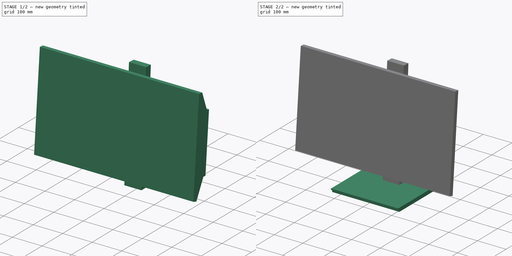
[diagram: build sequence overview — one tinted view per stage of 2, left to right]
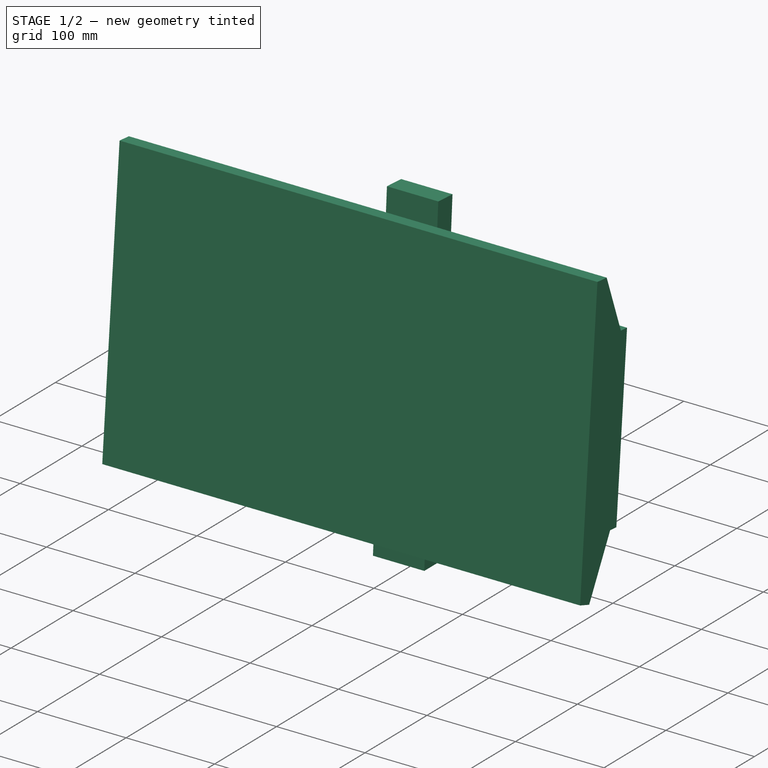
[diagram: stage 1 of 2 — iso view after this stage's code; geometry added in this stage tinted green]
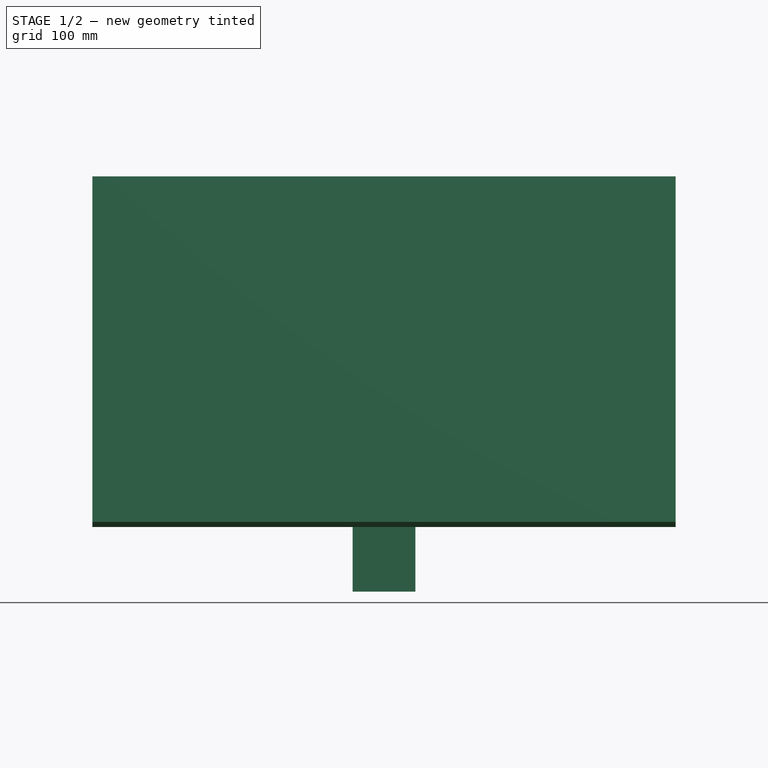
[diagram: stage 1 of 2 — front view after this stage's code; geometry added in this stage tinted green]
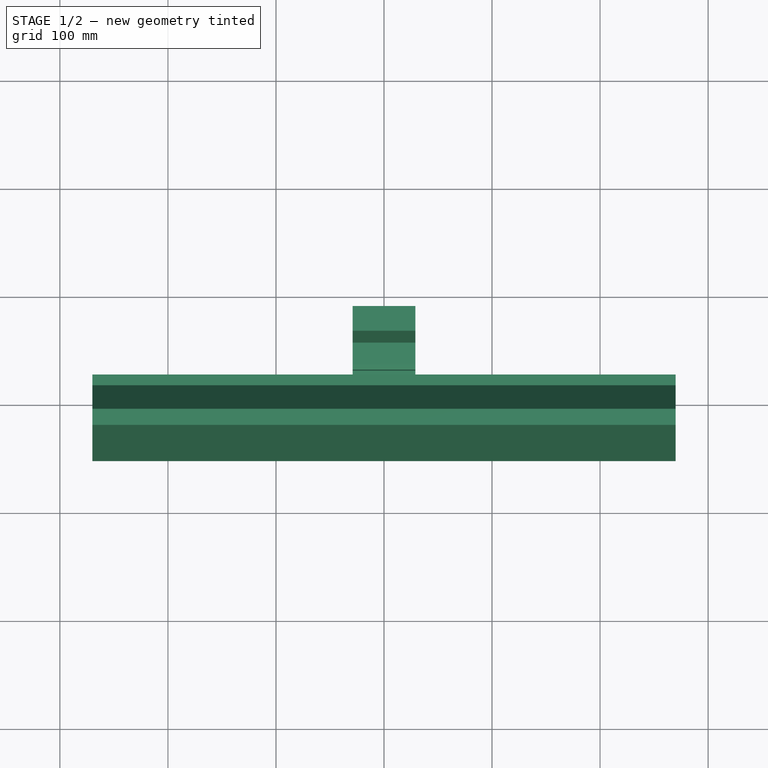
[diagram: stage 1 of 2 — top view after this stage's code; geometry added in this stage tinted green]
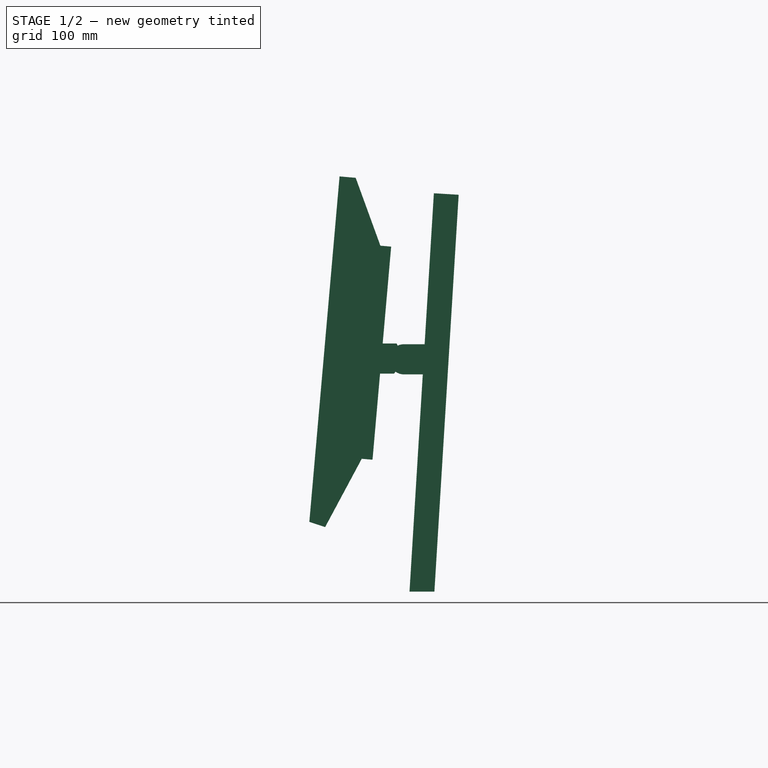
[diagram: stage 1 of 2 — right view after this stage's code; geometry added in this stage tinted green]
FCSTD DOCUMENT  (FreeCAD 0.20R29177 +426 (Git))
Label: monitor_bar_light_3d_model
License: All rights reserved
LicenseURL: http://en.wikipedia.org/wiki/All_rights_reserved
objects: Sketcher::SketchObject×5, PartDesign::Pad×3, Image::ImagePlane×2, Spreadsheet::Sheet×1, PartDesign::Plane×1, PartDesign::Pocket×1, PartDesign::Body×1
note: 15 computed .brp shape members not serialized (recipe doc carries the construction recipe); baked Part::Feature solids carry a one-line shape summary decoded from their .brp

FEATURE [Image::ImagePlane] ImagePlane  label="Monitor Tilt Ref"
  Placement = pos=(0,0,0) rot=(0.57735,0.57735,0.57735;2.0944rad)
  XSize = 264.049
  YSize = 612.33
FEATURE [Sketcher::SketchObject] Sketch  label="Monitor Side Sketch"
  FullyConstrained = true
  Placement = pos=(0,0,0) rot=(0.57735,0.57735,0.57735;2.0944rad)
  expr: Constraints[68] = <<Params>>.MonitorHeighAdjust
  expr: Constraints[86] = <<Params>>.MonitorTiltAngle
  sketch-geometry (33):
    g0: LineSegment StartX=39.8926 StartY=-261.309 StartZ=0 EndX=62.4444 EndY=107.408 EndZ=0
    g1: LineSegment StartX=85.4015 StartY=106.004 StartZ=0 EndX=62.9356 EndY=-261.309 EndZ=0
    g2: LineSegment StartX=101.893 StartY=-261.309 StartZ=0 EndX=-92.1074 EndY=-261.309 EndZ=0
    g3: LineSegment StartX=101.893 StartY=-261.309 StartZ=0 EndX=101.893 EndY=-265.309 EndZ=0
    g4: LineSegment StartX=101.893 StartY=-265.309 StartZ=0 EndX=95.8926 EndY=-265.309 EndZ=0
    g5: LineSegment StartX=95.8926 StartY=-265.309 StartZ=0 EndX=95.8926 EndY=-274.309 EndZ=0
    g6: LineSegment StartX=95.8926 StartY=-274.309 StartZ=0 EndX=-86.1074 EndY=-274.309 EndZ=0
    g7: LineSegment StartX=-86.1074 StartY=-274.309 StartZ=0 EndX=-86.1074 EndY=-265.309 EndZ=0
    g8: LineSegment StartX=-86.1074 StartY=-265.309 StartZ=0 EndX=-92.1074 EndY=-265.309 EndZ=0
    g9: LineSegment StartX=-92.1074 StartY=-261.309 StartZ=0 EndX=-92.1074 EndY=-265.309 EndZ=0
    g10: Circle CenterX=34.8976 CenterY=-46.3045 CenterZ=0 NormalX=0 NormalY=0 NormalZ=1 AngleXU=0 Radius=13.9739
    g11: LineSegment StartX=34.8976 StartY=-32.3306 StartZ=0 EndX=53.8976 EndY=-32.3306 EndZ=0
    g12: LineSegment StartX=34.8976 StartY=-60.2783 StartZ=0 EndX=52.1882 EndY=-60.2783 EndZ=0
    g13: LineSegment StartX=-24.8576 StartY=122.997 StartZ=0 EndX=-9.91473 EndY=121.69 EndZ=0
    g14: LineSegment StartX=-9.91473 StartY=121.69 StartZ=0 EndX=12.9477 EndY=58.8758 EndZ=0
    g15: LineSegment StartX=12.9477 StartY=58.8758 StartZ=0 EndX=22.9096 EndY=58.0043 EndZ=0
    g16: LineSegment StartX=-24.8576 StartY=122.997 StartZ=0 EndX=-52.8331 EndY=-196.764 EndZ=0
    g17: LineSegment StartX=-52.8331 StartY=-196.764 StartZ=0 EndX=-38.1968 EndY=-201.575 EndZ=0
    g18: LineSegment StartX=-38.1968 StartY=-201.575 StartZ=0 EndX=-4.30916 EndY=-138.371 EndZ=0
    g19: LineSegment StartX=-4.30916 StartY=-138.371 StartZ=0 EndX=5.65279 EndY=-139.242 EndZ=0
    g20: LineSegment StartX=5.65279 StartY=-139.242 StartZ=0 EndX=22.9096 EndY=58.0043 EndZ=0
    g21: LineSegment StartX=-9.91473 StartY=121.69 StartZ=0 EndX=-38.1968 EndY=-201.575 EndZ=0
    g22: LineSegment StartX=-4.30916 StartY=-138.371 StartZ=0 EndX=12.9477 EndY=58.8758 EndZ=0
    g23: LineSegment StartX=28.0656 StartY=-31.6533 StartZ=0 EndX=34.8976 EndY=-46.3045 EndZ=0
    g24: LineSegment StartX=34.8976 StartY=-46.3045 StartZ=0 EndX=25.6252 EndY=-59.5467 EndZ=0
    g25: LineSegment StartX=25.6252 StartY=-59.5467 StartZ=0 EndX=12.6252 EndY=-59.5467 EndZ=0
    g26: LineSegment StartX=28.0656 StartY=-31.6533 StartZ=0 EndX=15.0656 EndY=-31.6533 EndZ=0
    g27: LineSegment StartX=62.4444 StartY=107.408 StartZ=0 EndX=85.4015 EndY=106.004 EndZ=0
    g28: GeomPoint X=28.992 Y=-33.6398 Z=0
    g29: GeomPoint X=26.8825 Y=-57.7512 Z=0
    g30: LineSegment StartX=34.8976 StartY=-32.3306 StartZ=0 EndX=34.8976 EndY=-60.2783 EndZ=0
    g31: LineSegment StartX=28.0656 StartY=-31.6533 StartZ=0 EndX=28.992 EndY=-33.6398 EndZ=0
    g32: LineSegment StartX=26.8825 StartY=-57.7512 StartZ=0 EndX=25.6252 EndY=-59.5467 EndZ=0
  constraints (95):
    c: Horizontal(g2)
    c: PointOnObject(g0,g2)
    c: PointOnObject(g1,g2)
    c: Coincident(g3,g2)
    c: Vertical(g3)
    c: Coincident(g4,g3)
    c: Horizontal(g4)
    c: Coincident(g5,g4)
    c: Vertical(g5)
    c: Coincident(g6,g5)
    c: Horizontal(g6)
    c: Coincident(g7,g6)
    c: Vertical(g7)
    c: Coincident(g8,g7)
    c: Horizontal(g8)
    c: Coincident(g9,g2)
    c: Vertical(g9)
    c: Coincident(g8,g9)
    c: PointOnObject(g11,g10)
    c: PointOnObject(g11,g0)
    c: Horizontal(g11)
    c: PointOnObject(g12,g10)
    c: PointOnObject(g12,g0)
    c: Horizontal(g12)
    c: Coincident(g14,g13)
    c: Coincident(g15,g14)
    c: Coincident(g16,g13)
    c: Coincident(g17,g16)
    c: Coincident(g18,g17)
    c: Coincident(g20,g15)
    c: Coincident(g21,g13)
    c: Coincident(g21,g17)
    c: Coincident(g22,g18)
    c: Coincident(g22,g14)
    c: Coincident(g23,g10)
    c: Coincident(g24,g10)
    c: Coincident(g25,g24)
    c: PointOnObject(g25,g20)
    c: Horizontal(g25)
    c: Coincident(g26,g23)
    c: PointOnObject(g26,g20)
    c: Horizontal(g26)
    c: Angle(g23,g24) = 2.0944
    c: Angle(g0,g2) = 1.63188
    c: Coincident(g27,g0)
    c: Coincident(g27,g1)
    c: Parallel(g0,g1)
    c: Perpendicular(g0,g27)
    c: Distance(g27) = 23
    c: Distance(g11,g12) = 28
    c: PointOnObject(g28,g10)
    c: PointOnObject(g29,g10)
    c: PointOnObject(g29,g24)
    c: PointOnObject(g28,g23)
    c: Distance(g26,g25) = 28
    c: Distance(g8) = 6
    c: Distance(g4) = 6
    c: Distance(g2) = 194
    c: Parallel(g20,g22)
    c: Parallel(g22,g21)
    c: Parallel(g21,g16)
    c: Parallel(g19,g15)
    c: Parallel(g15,g13)
    c: Angle(g13,g14) = 2.00713
    c: Perpendicular(g16,g13)
    c: Coincident(g19,g18)
    c: Coincident(g19,g20)
    c: Angle(g18,g17) = 1.74533
    c: Distance(g11,g0) = 140
    c: Coincident(g30,g11)
    c: Coincident(g30,g12)
    c: Vertical(g30)
    c: PointOnObject(g10,g30)
    c: DistanceX(g6) = -86.1074
    c: DistanceY(g6) = -274.309
    c: Distance(g1) = 368
    c: Distance(g3) = 4
    c: Distance(g9) = 4
    c: Distance(g7) = 9
    c: Distance(g11) = 19
    c: Distance(g26) = 13
    c: Coincident(g31,g26)
    c: Coincident(g31,g28)
    c: Coincident(g32,g29)
    c: Coincident(g32,g25)
    c: Equal(g23,g24)
    c: Angle(g23,g30) = 2.70526
    c: Distance(g0,g2) = 132
    c: Equal(g25,g26)
    c: Distance(g15) = 10
    c: Distance(g15,g16) = 53.25
    c: Distance(g13) = 15
    c: Distance(g21) = 324.5
    c: Distance(g26,g15) = 90
    c: Distance(g19,g25) = 80
FEATURE [Image::ImagePlane] ImagePlane001  label="Monitor Hight Adj Ref"
  Placement = pos=(0,41,-19) rot=(0.57735,0.57735,0.57735;2.0944rad)
  XSize = 378.4
  YSize = 527.564
FEATURE [Spreadsheet::Sheet] Spreadsheet  label="Params"
  cells = A2=Parameter Name; B2=Min Value; C2=Max Value; D2=User Value; E2=Reference; F2=Resulting Sketch Angle; A3=Monitor Tilt; B3=-5; C3=20; D3=5; E3=150; F3(MonitorTiltAngle)==E3 + D3; A4=Monitor Height; B4=-120; C4=0; D4=-120; E4=20; F4(MonitorHeighAdjust)==E4 - D4
FEATURE [Sketcher::SketchObject] Sketch001  label="Monitor Body"
  ExternalGeometry = -> [Sketch]
  FullyConstrained = true
  MapMode = 5
  Placement = pos=(0,0,0) rot=(0.57735,0.57735,0.57735;2.0944rad)
  Support = -> [YZ_Plane]
  sketch-geometry (8):
    g0: LineSegment StartX=-24.8576 StartY=122.997 StartZ=0 EndX=-9.91473 EndY=121.69 EndZ=0
    g1: LineSegment StartX=-9.91473 StartY=121.69 StartZ=0 EndX=12.9477 EndY=58.8758 EndZ=0
    g2: LineSegment StartX=12.9477 StartY=58.8758 StartZ=0 EndX=22.9096 EndY=58.0043 EndZ=0
    g3: LineSegment StartX=22.9096 StartY=58.0043 StartZ=0 EndX=5.65279 EndY=-139.242 EndZ=0
    g4: LineSegment StartX=5.65279 StartY=-139.242 StartZ=0 EndX=-4.30916 EndY=-138.371 EndZ=0
    g5: LineSegment StartX=-4.30916 StartY=-138.371 StartZ=0 EndX=-38.1968 EndY=-201.575 EndZ=0
    g6: LineSegment StartX=-38.1968 StartY=-201.575 StartZ=0 EndX=-52.8331 EndY=-196.764 EndZ=0
    g7: LineSegment StartX=-52.8331 StartY=-196.764 StartZ=0 EndX=-24.8576 EndY=122.997 EndZ=0
  constraints (16):
    c: Coincident(g0,g-4)
    c: Coincident(g0,g-5)
    c: Coincident(g1,g0)
    c: Coincident(g1,g-6)
    c: Coincident(g2,g1)
    c: Coincident(g2,g-7)
    c: Coincident(g3,g2)
    c: Coincident(g3,g-8)
    c: Coincident(g4,g3)
    c: Coincident(g4,g-9)
    c: Coincident(g5,g4)
    c: Coincident(g5,g-10)
    c: Coincident(g6,g5)
    c: Coincident(g6,g-10)
    c: Coincident(g7,g6)
    c: Coincident(g7,g0)
FEATURE [PartDesign::Pad] Pad  label="Monitor"
  Direction = (1,-2e-16,3e-16)
  Length = 540
  Length2 = 10
  Midplane = true
  Placement = pos=(0,0,0) rot=(0.57735,0.57735,0.57735;2.0944rad)
  Profile = -> Sketch001
  ReferenceAxis = -> Sketch001 [N_Axis]
  Type = 0
FEATURE [Sketcher::SketchObject] Sketch002  label="Monitor Stand Bar"
  ExternalGeometry = -> [Sketch]
  FullyConstrained = true
  MapMode = 5
  Placement = pos=(0,0,0) rot=(0.57735,0.57735,0.57735;2.0944rad)
  Support = -> [YZ_Plane]
  sketch-geometry (14):
    g0: LineSegment StartX=62.4444 StartY=107.408 StartZ=0 EndX=85.4015 EndY=106.004 EndZ=0
    g1: LineSegment StartX=85.4015 StartY=106.004 StartZ=0 EndX=62.9356 EndY=-261.309 EndZ=0
    g2: LineSegment StartX=62.9356 StartY=-261.309 StartZ=0 EndX=39.8926 EndY=-261.309 EndZ=0
    g3: LineSegment StartX=39.8926 StartY=-261.309 StartZ=0 EndX=52.1882 EndY=-60.2783 EndZ=0
    g4: LineSegment StartX=34.8976 StartY=-60.2783 StartZ=0 EndX=52.1882 EndY=-60.2783 EndZ=0
    g5: LineSegment StartX=34.8976 StartY=-32.3306 StartZ=0 EndX=53.8976 EndY=-32.3306 EndZ=0
    g6: LineSegment StartX=53.8976 StartY=-32.3306 StartZ=0 EndX=62.4444 EndY=107.408 EndZ=0
    g7: ArcOfCircle CenterX=34.8976 CenterY=-46.3045 CenterZ=0 NormalX=0 NormalY=0 NormalZ=1 AngleXU=0 Radius=13.9739 StartAngle=1.5708 EndAngle=2.00713
    g8: ArcOfCircle CenterX=34.8976 CenterY=-46.3045 CenterZ=0 NormalX=0 NormalY=0 NormalZ=1 AngleXU=0 Radius=13.9739 StartAngle=4.10152 EndAngle=4.71239
    g9: LineSegment StartX=26.8825 StartY=-57.7512 StartZ=0 EndX=25.6252 EndY=-59.5467 EndZ=0
    g10: LineSegment StartX=25.6252 StartY=-59.5467 StartZ=0 EndX=12.6252 EndY=-59.5467 EndZ=0
    g11: LineSegment StartX=15.0656 StartY=-31.6533 StartZ=0 EndX=28.0656 EndY=-31.6533 EndZ=0
    g12: LineSegment StartX=28.0656 StartY=-31.6533 StartZ=0 EndX=28.992 EndY=-33.6398 EndZ=0
    g13: LineSegment StartX=15.0656 StartY=-31.6533 StartZ=0 EndX=12.6252 EndY=-59.5467 EndZ=0
  constraints (30):
    c: Coincident(g0,g-4)
    c: Coincident(g0,g-5)
    c: Coincident(g1,g0)
    c: Coincident(g1,g-5)
    c: Coincident(g2,g1)
    c: Coincident(g2,g-4)
    c: Coincident(g3,g2)
    c: Coincident(g3,g-7)
    c: Coincident(g4,g-7)
    c: Coincident(g4,g3)
    c: Coincident(g5,g-8)
    c: Coincident(g5,g-8)
    c: Coincident(g6,g5)
    c: Coincident(g6,g0)
    c: Coincident(g7,g-12)
    c: PointOnObject(g7,g-13)
    c: Coincident(g7,g5)
    c: Coincident(g8,g7)
    c: PointOnObject(g8,g-11)
    c: Coincident(g8,g4)
    c: Coincident(g9,g8)
    c: Coincident(g9,g-11)
    c: Coincident(g10,g9)
    c: Coincident(g10,g-10)
    c: Coincident(g11,g-9)
    c: Coincident(g11,g-13)
    c: Coincident(g12,g11)
    c: Coincident(g12,g7)
    c: Coincident(g13,g11)
    c: Coincident(g13,g10)
FEATURE [PartDesign::Pad] Pad001  label="Stand"
  BaseFeature = -> Pad
  Direction = (1,-2e-16,3e-16)
  Length = 58
  Length2 = 10
  Midplane = true
  Placement = pos=(0,0,0) rot=(0.57735,0.57735,0.57735;2.0944rad)
  Profile = -> Sketch002
  ReferenceAxis = -> Sketch002 [N_Axis]
  Type = 0
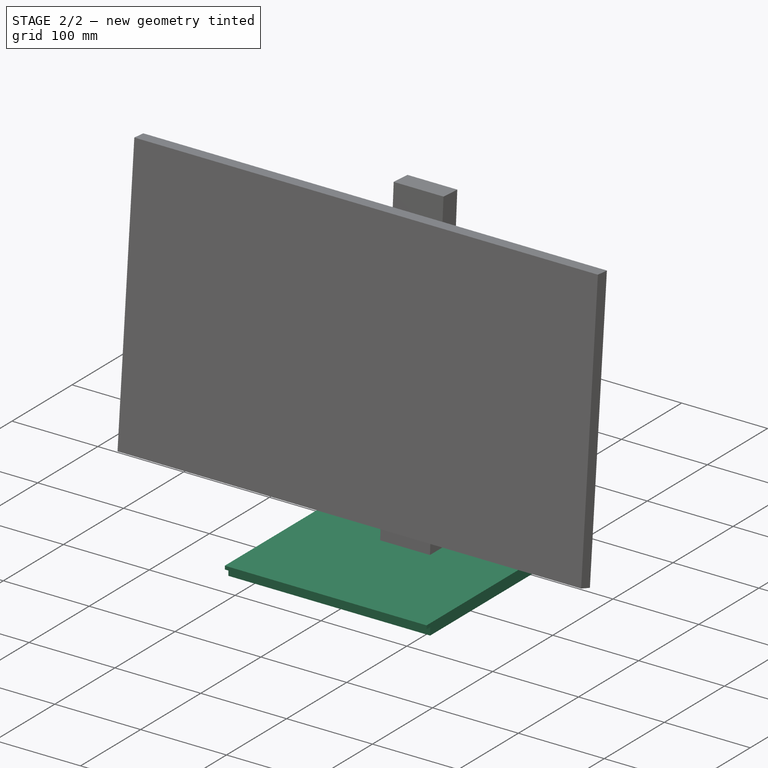
[diagram: stage 2 of 2 — iso view after this stage's code; geometry added in this stage tinted green]
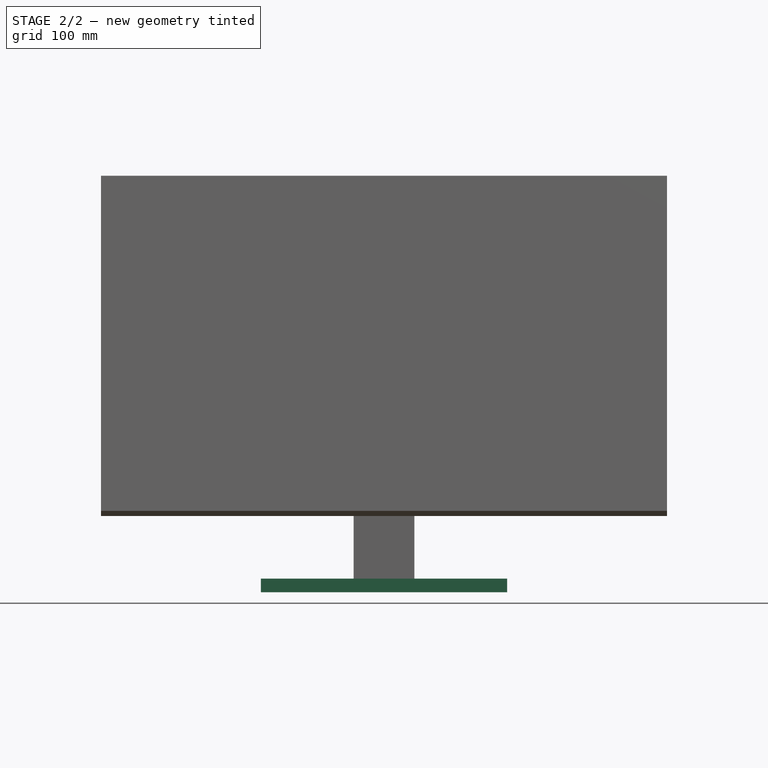
[diagram: stage 2 of 2 — front view after this stage's code; geometry added in this stage tinted green]
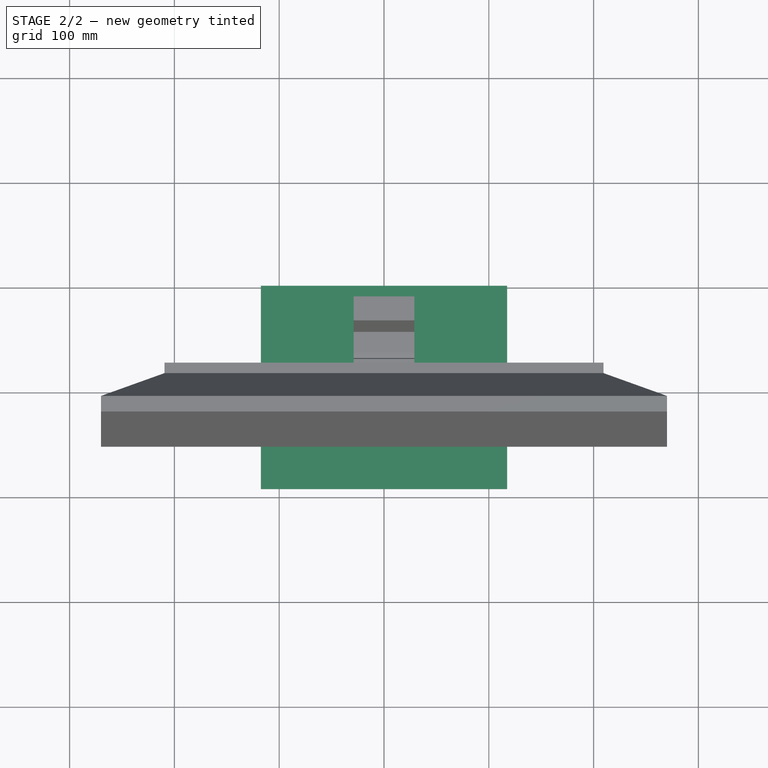
[diagram: stage 2 of 2 — top view after this stage's code; geometry added in this stage tinted green]
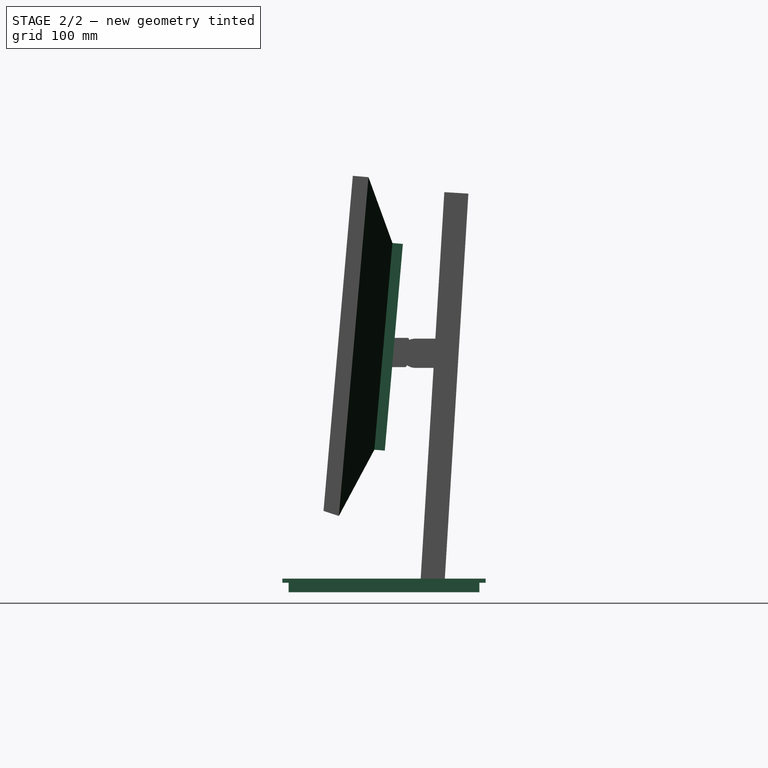
[diagram: stage 2 of 2 — right view after this stage's code; geometry added in this stage tinted green]
FEATURE [Sketcher::SketchObject] Sketch003  label="Monitor Stand Base"
  ExternalGeometry = -> [Sketch]
  FullyConstrained = true
  MapMode = 5
  Placement = pos=(0,0,0) rot=(0.57735,0.57735,0.57735;2.0944rad)
  Support = -> [YZ_Plane]
  sketch-geometry (8):
    g0: LineSegment StartX=-92.1074 StartY=-261.309 StartZ=0 EndX=101.893 EndY=-261.309 EndZ=0
    g1: LineSegment StartX=101.893 StartY=-261.309 StartZ=0 EndX=101.893 EndY=-265.309 EndZ=0
    g2: LineSegment StartX=101.893 StartY=-265.309 StartZ=0 EndX=95.8926 EndY=-265.309 EndZ=0
    g3: LineSegment StartX=95.8926 StartY=-274.309 StartZ=0 EndX=95.8926 EndY=-265.309 EndZ=0
    g4: LineSegment StartX=95.8926 StartY=-274.309 StartZ=0 EndX=-86.1074 EndY=-274.309 EndZ=0
    g5: LineSegment StartX=-92.1074 StartY=-261.309 StartZ=0 EndX=-92.1074 EndY=-265.309 EndZ=0
    g6: LineSegment StartX=-92.1074 StartY=-265.309 StartZ=0 EndX=-86.1074 EndY=-265.309 EndZ=0
    g7: LineSegment StartX=-86.1074 StartY=-265.309 StartZ=0 EndX=-86.1074 EndY=-274.309 EndZ=0
  constraints (16):
    c: Coincident(g0,g-6)
    c: Coincident(g0,g-10)
    c: Coincident(g1,g0)
    c: Coincident(g1,g-10)
    c: Coincident(g2,g1)
    c: Coincident(g2,g-9)
    c: Coincident(g3,g-9)
    c: Coincident(g3,g2)
    c: Coincident(g4,g3)
    c: Coincident(g4,g-5)
    c: Coincident(g5,g0)
    c: Coincident(g5,g-7)
    c: Coincident(g6,g5)
    c: Coincident(g6,g-7)
    c: Coincident(g7,g6)
    c: Coincident(g7,g4)
FEATURE [PartDesign::Pad] Pad002  label="Base"
  BaseFeature = -> Pad001
  Direction = (1,-2e-16,3e-16)
  Length = 235
  Length2 = 10
  Midplane = true
  Placement = pos=(0,0,0) rot=(0.57735,0.57735,0.57735;2.0944rad)
  Profile = -> Sketch003
  ReferenceAxis = -> Sketch003 [N_Axis]
  Type = 0
FEATURE [PartDesign::Plane] DatumPlane
  Length = 298.049
  MapMode = 5
  Placement = pos=(-6.05e-14,5.21019,59.5528) rot=(-0.043578,-0.043578,-0.998099;1.5727rad)
  ResizeMode = 0
  Support = -> [Pad002]
  Width = 610.16
FEATURE [Sketcher::SketchObject] Sketch004
  ExternalGeometry = -> [Pad002]
  FullyConstrained = true
  MapMode = 5
  Placement = pos=(-6.05e-14,5.21019,59.5528) rot=(-0.043578,-0.043578,-0.998099;1.5727rad)
  Support = -> [DatumPlane]
  sketch-geometry (9):
    g0: LineSegment StartX=-7.76704 StartY=-270 StartZ=0 EndX=-7.76704 EndY=270 EndZ=0
    g1: LineSegment StartX=20.483 StartY=270 StartZ=0 EndX=-7.76704 EndY=209.418 EndZ=0
    g2: LineSegment StartX=20.483 StartY=-270 StartZ=0 EndX=-7.76704 EndY=-209.418 EndZ=0
    g3: LineSegment StartX=-7.76704 StartY=-209.418 StartZ=0 EndX=-17.767 EndY=-209.418 EndZ=0
    g4: LineSegment StartX=-7.76704 StartY=209.418 StartZ=0 EndX=-17.767 EndY=209.418 EndZ=0
    g5: LineSegment StartX=20.483 StartY=270 StartZ=0 EndX=-17.767 EndY=270 EndZ=0
    g6: LineSegment StartX=-17.767 StartY=209.418 StartZ=0 EndX=-17.767 EndY=270 EndZ=0
    g7: LineSegment StartX=-17.767 StartY=-270 StartZ=0 EndX=-17.767 EndY=-209.418 EndZ=0
    g8: LineSegment StartX=-17.767 StartY=-270 StartZ=0 EndX=20.483 EndY=-270 EndZ=0
  constraints (22):
    c: Coincident(g0,g-7)
    c: Coincident(g0,g-9)
    c: Coincident(g1,g-10)
    c: PointOnObject(g1,g0)
    c: Coincident(g2,g-7)
    c: PointOnObject(g2,g0)
    c: Coincident(g3,g2)
    c: PointOnObject(g3,g-3)
    c: Coincident(g4,g1)
    c: PointOnObject(g4,g-3)
    c: Perpendicular(g-3,g4)
    c: Perpendicular(g-3,g3)
    c: Angle(g-6,g2) = 2.00713
    c: Angle(g1,g-10) = 2.00713
    c: Coincident(g5,g1)
    c: Coincident(g5,g-8)
    c: Coincident(g6,g4)
    c: Coincident(g6,g5)
    c: Coincident(g7,g-4)
    c: Coincident(g7,g3)
    c: Coincident(g8,g7)
    c: Coincident(g8,g2)
FEATURE [PartDesign::Pocket] Pocket  label="Monitor Side Pocket"
  BaseFeature = -> Pad002
  Direction = (1e-15,-0.0871557,-0.996195)
  Length = 5
  Length2 = 5
  Midplane = true
  Placement = pos=(0,0,0) rot=(0.57735,0.57735,0.57735;2.0944rad)
  Profile = -> Sketch004
  ReferenceAxis = -> Sketch004 [N_Axis]
  Type = 1
FEATURE [PartDesign::Body] Body  label="Monitor Body001"
  Group = -> [Sketch001,Sketch,Pad,Sketch002,Pad001,Sketch003,Pad002,DatumPlane,Sketch004,Pocket]
  Origin = -> Origin
  Tip = -> Pocket
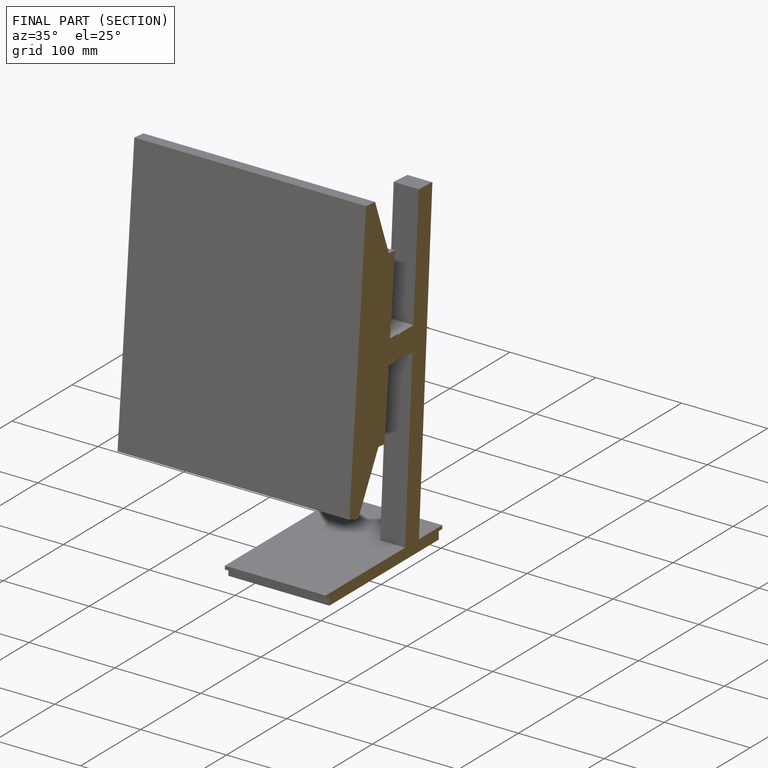
[diagram: finished part — half-section view (interior)]
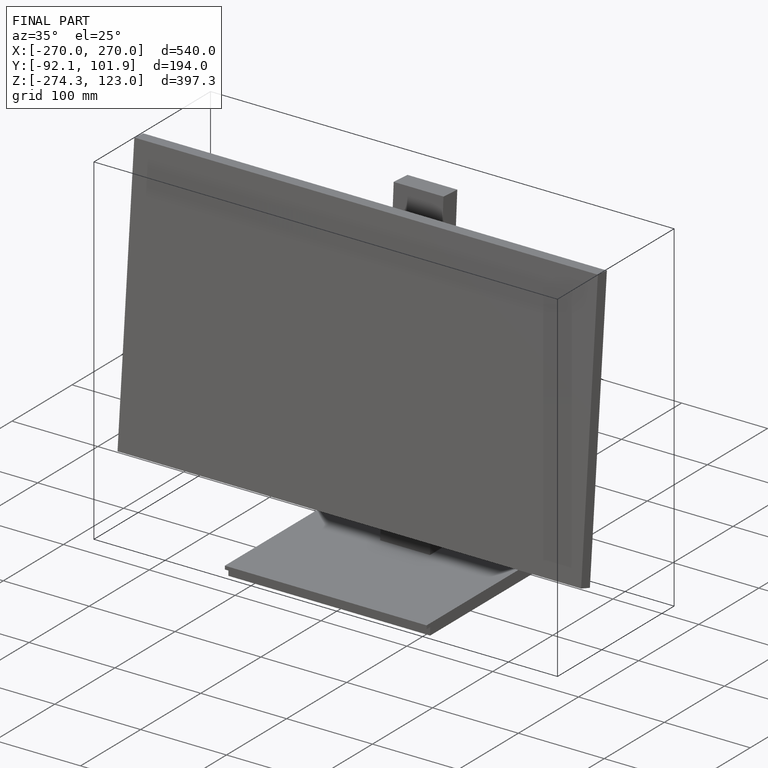
[diagram: finished part — iso view with bounding-box wireframe]
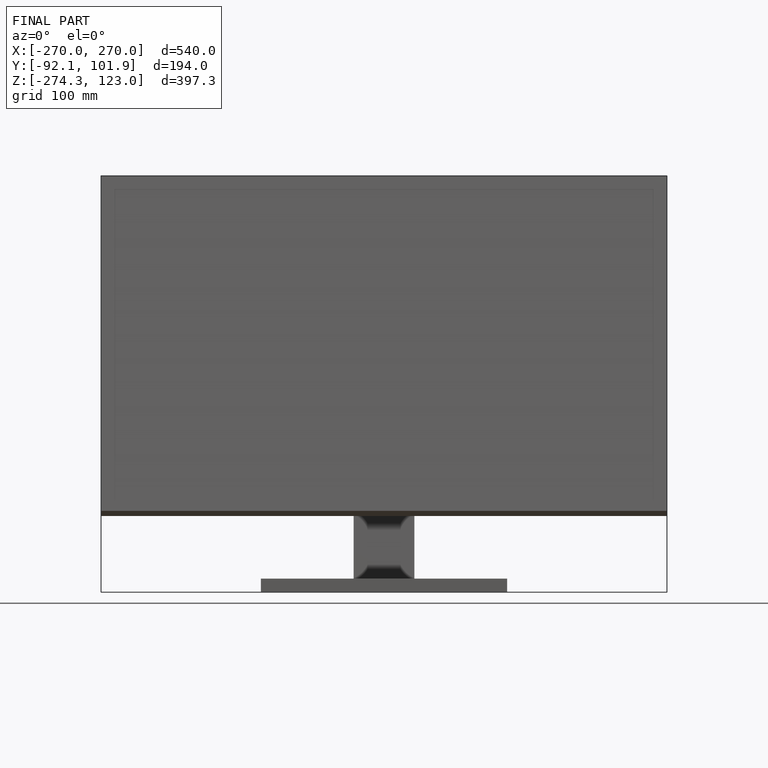
[diagram: finished part — front view with bounding-box wireframe]
